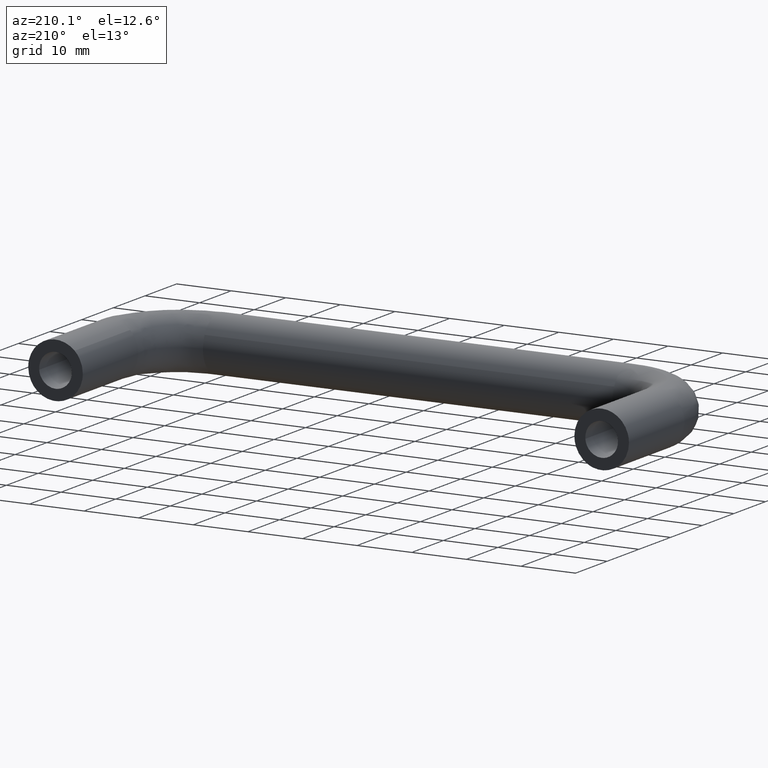
[diagram: clean part render]
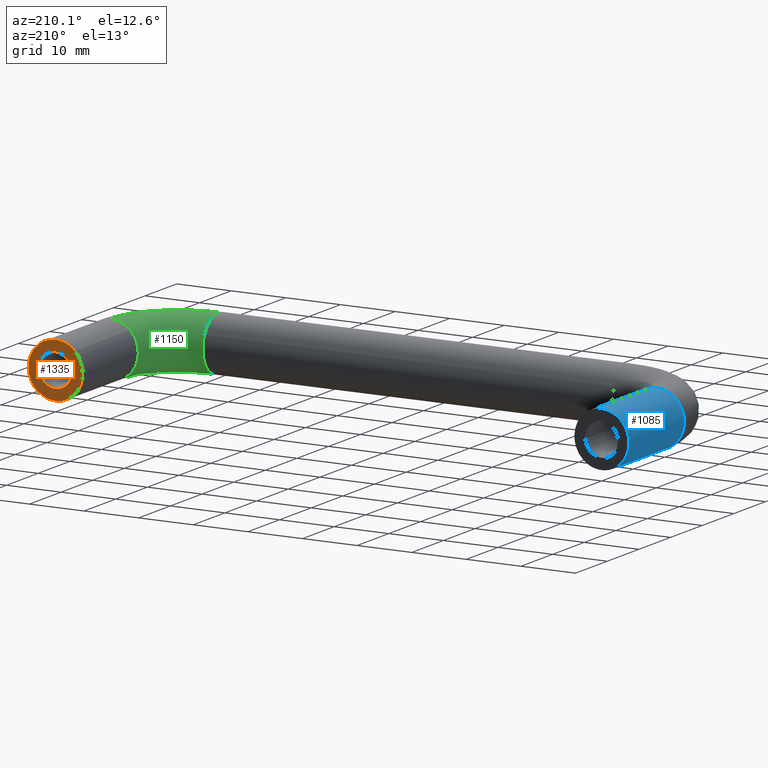
[diagram: same view with three faces highlighted in distinct colors, each labeled with its STEP entity id]
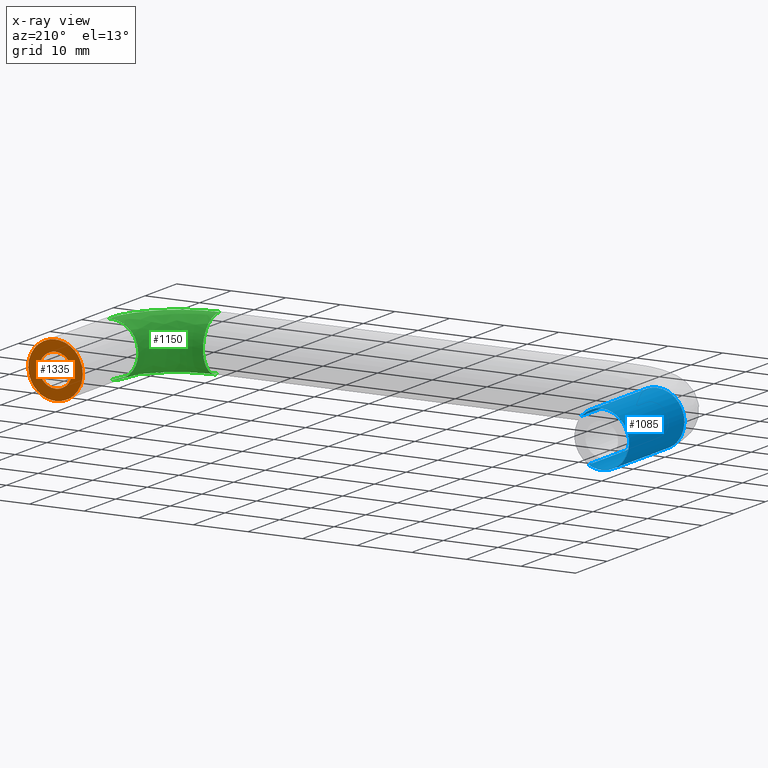
[diagram: x-ray of the same camera — body ghosted, the three highlighted faces saturated]
A machine part, auxiliary view with three faces highlighted in distinct colors.
The next image is the same camera in x-ray (body ghosted, the three faces saturated) — at least one of them is partly hidden behind the body in this view.
Their STEP definitions:

[orange] entity #1335 — the highlighted face is a freeform B-spline surface patch.
#261=CARTESIAN_POINT('',(97.009247998828442,-8.326673E-017,0.235377287537022));
#262=VERTEX_POINT('',#261);
#268=CARTESIAN_POINT('',(100.0,0.0,3.0));
#269=VERTEX_POINT('',#268);
#270=CARTESIAN_POINT('',(100.0,0.0,3.0));
#271=CARTESIAN_POINT('',(97.226828525682933,0.0,3.000000000000000));
#272=CARTESIAN_POINT('',(97.009247998828442,-8.326673E-017,0.235377287537022));
#280=(BOUNDED_CURVE()B_SPLINE_CURVE(2,(#270,#271,#272),.UNSPECIFIED.,.F.,.U.)B_SPLINE_CURVE_WITH_KNOTS((3,3),(0.0,0.236331300592245),.UNSPECIFIED.)CURVE()GEOMETRIC_REPRESENTATION_ITEM()RATIONAL_B_SPLINE_CURVE((1.0,0.723120658652672,0.969723356087248))REPRESENTATION_ITEM(''));
#281=EDGE_CURVE('',#269,#262,#280,.T.);
#283=CARTESIAN_POINT('',(102.990752001171600,-8.326673E-017,-0.235377287537022));
#284=VERTEX_POINT('',#283);
#285=CARTESIAN_POINT('',(102.990752001171560,-8.326673E-017,-0.235377287537022));
#286=CARTESIAN_POINT('',(102.999999999999990,0.0,-0.117870321378136));
#287=CARTESIAN_POINT('',(103.0,0.0,0.0));
#288=CARTESIAN_POINT('',(103.0,0.0,3.0));
#289=CARTESIAN_POINT('',(100.0,0.0,3.0));
#297=(BOUNDED_CURVE()B_SPLINE_CURVE(2,(#285,#286,#287,#288,#289),.UNSPECIFIED.,.F.,.U.)B_SPLINE_CURVE_WITH_KNOTS((3,2,3),(0.736331300592245,0.750000000000000,1.0),.UNSPECIFIED.)CURVE()GEOMETRIC_REPRESENTATION_ITEM()RATIONAL_B_SPLINE_CURVE((0.969723356087248,0.983986122533876,1.0,0.707106781186548,1.0))REPRESENTATION_ITEM(''));
#298=EDGE_CURVE('',#284,#269,#297,.T.);
#374=CARTESIAN_POINT('',(100.0,0.0,-3.0));
#375=VERTEX_POINT('',#374);
#376=CARTESIAN_POINT('',(100.0,0.0,-3.0));
#377=CARTESIAN_POINT('',(102.773171474317050,0.0,-3.0));
#378=CARTESIAN_POINT('',(102.990752001171560,-8.326673E-017,-0.235377287537022));
#386=(BOUNDED_CURVE()B_SPLINE_CURVE(2,(#376,#377,#378),.UNSPECIFIED.,.F.,.U.)B_SPLINE_CURVE_WITH_KNOTS((3,3),(0.500000000000000,0.736331300592245),.UNSPECIFIED.)CURVE()GEOMETRIC_REPRESENTATION_ITEM()RATIONAL_B_SPLINE_CURVE((1.0,0.723120658652671,0.969723356087250))REPRESENTATION_ITEM(''));
#387=EDGE_CURVE('',#375,#284,#386,.T.);
#389=CARTESIAN_POINT('',(97.009247998828442,-8.326673E-017,0.235377287537022));
#390=CARTESIAN_POINT('',(97.0,0.0,0.117870321378135));
#391=CARTESIAN_POINT('',(97.0,0.0,0.0));
#392=CARTESIAN_POINT('',(97.0,0.0,-3.0));
#393=CARTESIAN_POINT('',(100.0,0.0,-3.0));
#401=(BOUNDED_CURVE()B_SPLINE_CURVE(2,(#389,#390,#391,#392,#393),.UNSPECIFIED.,.F.,.U.)B_SPLINE_CURVE_WITH_KNOTS((3,2,3),(0.236331300592245,0.250000000000000,0.500000000000000),.UNSPECIFIED.)CURVE()GEOMETRIC_REPRESENTATION_ITEM()RATIONAL_B_SPLINE_CURVE((0.969723356087248,0.983986122533876,1.0,0.707106781186548,1.0))REPRESENTATION_ITEM(''));
#402=EDGE_CURVE('',#262,#375,#401,.T.);
#475=CARTESIAN_POINT('',(96.495454007183923,1.351697E-014,3.566252568766891));
#476=VERTEX_POINT('',#475);
#482=CARTESIAN_POINT('',(95.0,1.387779E-014,0.0));
#483=VERTEX_POINT('',#482);
#484=CARTESIAN_POINT('',(95.0,1.387779E-014,0.0));
#485=CARTESIAN_POINT('',(95.000000000000014,1.387779E-014,2.096674550648371));
#486=CARTESIAN_POINT('',(96.495454007183923,1.351697E-014,3.566252568766892));
#494=(BOUNDED_CURVE()B_SPLINE_CURVE(2,(#484,#485,#486),.UNSPECIFIED.,.F.,.U.)B_SPLINE_CURVE_WITH_KNOTS((3,3),(0.500000000000000,0.626316785404827),.UNSPECIFIED.)CURVE()GEOMETRIC_REPRESENTATION_ITEM()RATIONAL_B_SPLINE_CURVE((1.0,0.852010680530448,0.853569641938031))REPRESENTATION_ITEM(''));
#495=EDGE_CURVE('',#483,#476,#494,.T.);
#497=CARTESIAN_POINT('',(103.294845323498610,1.327082E-014,-3.760850208956461));
#498=VERTEX_POINT('',#497);
#499=CARTESIAN_POINT('',(103.294845323498630,1.327082E-014,-3.760850208956461));
#500=CARTESIAN_POINT('',(101.880436969536730,1.387779E-014,-5.000000000000001));
#501=CARTESIAN_POINT('',(100.0,1.387779E-014,-5.0));
#502=CARTESIAN_POINT('',(95.000000000000014,1.387779E-014,-5.000000000000001));
#503=CARTESIAN_POINT('',(95.0,1.387779E-014,0.0));
#511=(BOUNDED_CURVE()B_SPLINE_CURVE(2,(#499,#500,#501,#502,#503),.UNSPECIFIED.,.F.,.U.)B_SPLINE_CURVE_WITH_KNOTS((3,2,3),(0.134954821985611,0.250000000000000,0.500000000000000),.UNSPECIFIED.)CURVE()GEOMETRIC_REPRESENTATION_ITEM()RATIONAL_B_SPLINE_CURVE((0.854482199329621,0.865216190009596,1.0,0.707106781186548,1.0))REPRESENTATION_ITEM(''));
#512=EDGE_CURVE('',#498,#483,#511,.T.);
#560=CARTESIAN_POINT('',(105.0,1.387779E-014,0.0));
#561=VERTEX_POINT('',#560);
#562=CARTESIAN_POINT('',(105.0,1.387779E-014,0.0));
#563=CARTESIAN_POINT('',(105.000000000000010,1.387779E-014,-2.266980312642356));
#564=CARTESIAN_POINT('',(103.294845323498630,1.327082E-014,-3.760850208956461));
#572=(BOUNDED_CURVE()B_SPLINE_CURVE(2,(#562,#563,#564),.UNSPECIFIED.,.F.,.U.)B_SPLINE_CURVE_WITH_KNOTS((3,3),(0.0,0.134954821985611),.UNSPECIFIED.)CURVE()GEOMETRIC_REPRESENTATION_ITEM()RATIONAL_B_SPLINE_CURVE((1.0,0.841890591176951,0.854482199329621))REPRESENTATION_ITEM(''));
#573=EDGE_CURVE('',#561,#498,#572,.T.);
#575=CARTESIAN_POINT('',(96.495454007183923,1.351697E-014,3.566252568766892));
#576=CARTESIAN_POINT('',(97.954446530814650,1.387779E-014,5.0));
#577=CARTESIAN_POINT('',(100.0,1.387779E-014,5.0));
#578=CARTESIAN_POINT('',(105.000000000000010,1.387779E-014,5.000000000000001));
#579=CARTESIAN_POINT('',(105.0,1.387779E-014,0.0));
#587=(BOUNDED_CURVE()B_SPLINE_CURVE(2,(#575,#576,#577,#578,#579),.UNSPECIFIED.,.F.,.U.)B_SPLINE_CURVE_WITH_KNOTS((3,2,3),(0.626316785404827,0.750000000000000,1.0),.UNSPECIFIED.)CURVE()GEOMETRIC_REPRESENTATION_ITEM()RATIONAL_B_SPLINE_CURVE((0.853569641938031,0.855096100656099,1.0,0.707106781186548,1.0))REPRESENTATION_ITEM(''));
#588=EDGE_CURVE('',#476,#561,#587,.T.);
#1318=CARTESIAN_POINT('',(94.500500019381946,1.387779E-014,-5.496745665956859));
#1319=CARTESIAN_POINT('',(105.499500248839000,1.387779E-014,-5.496745665956859));
#1320=CARTESIAN_POINT('',(94.500500019381946,1.387779E-014,5.499280800510766));
#1321=CARTESIAN_POINT('',(105.499500248839000,1.387779E-014,5.499280800510766));
#1322=B_SPLINE_SURFACE_WITH_KNOTS('',1,1,((#1318,#1320),(#1319,#1321)),.UNSPECIFIED.,.F.,.F.,.U.,(2,2),(2,2),(0.0,10.999000229457041),(0.0,10.996026466467629),.UNSPECIFIED.);
#1323=ORIENTED_EDGE('',*,*,#573,.T.);
#1324=ORIENTED_EDGE('',*,*,#512,.T.);
#1325=ORIENTED_EDGE('',*,*,#495,.T.);
#1326=ORIENTED_EDGE('',*,*,#588,.T.);
#1327=EDGE_LOOP('',(#1323,#1324,#1325,#1326));
#1328=FACE_OUTER_BOUND('',#1327,.T.);
#1329=ORIENTED_EDGE('',*,*,#387,.T.);
#1330=ORIENTED_EDGE('',*,*,#298,.T.);
#1331=ORIENTED_EDGE('',*,*,#281,.T.);
#1332=ORIENTED_EDGE('',*,*,#402,.T.);
#1333=EDGE_LOOP('',(#1329,#1330,#1331,#1332));
#1334=FACE_BOUND('',#1333,.T.);
#1335=ADVANCED_FACE('',(#1328,#1334),#1322,.F.);

[blue] entity #1085 — the highlighted face is a freeform B-spline surface patch.
#888=CARTESIAN_POINT('',(2.421098661291466,-17.499999999999751,-4.374732137204823));
#889=VERTEX_POINT('',#888);
#905=CARTESIAN_POINT('',(2.421098661285238,6.025501E-017,-4.374732137208268));
#906=VERTEX_POINT('',#905);
#907=CARTESIAN_POINT('',(2.421098661285238,6.025501E-017,-4.374732137208268));
#908=CARTESIAN_POINT('',(2.421098661291466,-17.499999999999751,-4.374732137204823));
#909=QUASI_UNIFORM_CURVE('',1,(#907,#908),.UNSPECIFIED.,.F.,.U.);
#910=EDGE_CURVE('',#906,#889,#909,.T.);
#927=CARTESIAN_POINT('',(3.686388270127679,1.110223E-016,3.377949307177291));
#928=VERTEX_POINT('',#927);
#942=CARTESIAN_POINT('',(3.686388231908143,-17.500000000098041,3.377949348816192));
#943=VERTEX_POINT('',#942);
#944=CARTESIAN_POINT('',(3.686388270127679,1.110223E-016,3.377949307177291));
#945=CARTESIAN_POINT('',(3.686388231908143,-17.500000000098041,3.377949348816192));
#946=QUASI_UNIFORM_CURVE('',1,(#944,#945),.UNSPECIFIED.,.F.,.U.);
#947=EDGE_CURVE('',#928,#943,#946,.T.);
#965=CARTESIAN_POINT('',(3.686386684050619,0.437500000009226,3.377951038078300));
#966=CARTESIAN_POINT('',(0.308435645972318,0.437500000009226,7.064337722128919));
#967=CARTESIAN_POINT('',(-3.377951038078300,0.437500000009225,3.686386684050619));
#968=CARTESIAN_POINT('',(-7.064337722128919,0.437500000009225,0.308435645972318));
#969=CARTESIAN_POINT('',(-3.686386684050619,0.437500000009225,-3.377951038078300));
#970=CARTESIAN_POINT('',(-1.025271042433037,0.437500000009226,-6.282049160103976));
#971=CARTESIAN_POINT('',(2.421098661271897,0.437500000009226,-4.374732137215650));
#972=CARTESIAN_POINT('',(3.686386684050621,-17.948437500378439,3.377951038078300));
#973=CARTESIAN_POINT('',(0.308435645972320,-17.948437500378436,7.064337722128919));
#974=CARTESIAN_POINT('',(-3.377951038078298,-17.948437500378439,3.686386684050619));
#975=CARTESIAN_POINT('',(-7.064337722128917,-17.948437500378436,0.308435645972318));
#976=CARTESIAN_POINT('',(-3.686386684050616,-17.948437500378439,-3.377951038078300));
#977=CARTESIAN_POINT('',(-1.025271042433034,-17.948437500378436,-6.282049160103976));
#978=CARTESIAN_POINT('',(2.421098661271898,-17.948437500378439,-4.374732137215650));
#986=(BOUNDED_SURFACE()B_SPLINE_SURFACE(2,1,((#965,#972),(#966,#973),(#967,#974),(#968,#975),(#969,#976),(#970,#977),(#971,#978)),.UNSPECIFIED.,.F.,.F.,.U.)B_SPLINE_SURFACE_WITH_KNOTS((3,2,2,3),(2,2),(0.0,8.284271247461899,16.568542494923800,23.527330342791789),(0.0,18.385937500387669),.UNSPECIFIED.)GEOMETRIC_REPRESENTATION_ITEM()RATIONAL_B_SPLINE_SURFACE(((1.0,1.0),(0.707106781186548,0.707106781186548),(1.0,1.0),(0.707106781186548,0.707106781186548),(1.0,1.0),(0.753969696196700,0.753969696196700),(0.921270302782944,0.921270302782944)))REPRESENTATION_ITEM('')SURFACE());
#987=CARTESIAN_POINT('',(-0.348666258404388,-17.500000000158121,-4.987828369165310));
#988=VERTEX_POINT('',#987);
#989=CARTESIAN_POINT('',(-0.348666258404388,-17.500000000158121,-4.987828369165310));
#990=CARTESIAN_POINT('',(-0.174545579902668,-17.499999999999744,-5.000000000000001));
#991=CARTESIAN_POINT('',(2.143061E-015,-17.499999999999751,-5.0));
#992=CARTESIAN_POINT('',(1.291289514132040,-17.499999999999748,-4.999999999999999));
#993=CARTESIAN_POINT('',(2.421098661291466,-17.499999999999755,-4.374732137204823));
#1001=(BOUNDED_CURVE()B_SPLINE_CURVE(2,(#989,#990,#991,#992,#993),.UNSPECIFIED.,.F.,.U.)B_SPLINE_CURVE_WITH_KNOTS((3,2,3),(0.237833686498780,0.250000000000000,0.332484288972018),.UNSPECIFIED.)CURVE()GEOMETRIC_REPRESENTATION_ITEM()RATIONAL_B_SPLINE_CURVE((0.972879876310173,0.985746277110136,1.0,0.903363644405787,0.870495137451860))REPRESENTATION_ITEM(''));
#1002=EDGE_CURVE('',#988,#889,#1001,.T.);
#1003=ORIENTED_EDGE('',*,*,#1002,.F.);
#1004=CARTESIAN_POINT('',(-4.999999999999998,-17.499999999999751,0.0));
#1005=VERTEX_POINT('',#1004);
#1006=CARTESIAN_POINT('',(-4.999999999999998,-17.499999999999751,0.0));
#1007=CARTESIAN_POINT('',(-4.999999999999998,-17.499999999999748,-4.662684235345060));
#1008=CARTESIAN_POINT('',(-0.348666258404388,-17.500000000158124,-4.987828369165310));
#1016=(BOUNDED_CURVE()B_SPLINE_CURVE(2,(#1006,#1007,#1008),.UNSPECIFIED.,.F.,.U.)B_SPLINE_CURVE_WITH_KNOTS((3,3),(0.0,0.237833686498780),.UNSPECIFIED.)CURVE()GEOMETRIC_REPRESENTATION_ITEM()RATIONAL_B_SPLINE_CURVE((1.0,0.721360504076412,0.972879876310173))REPRESENTATION_ITEM(''));
#1017=EDGE_CURVE('',#1005,#988,#1016,.T.);
#1018=ORIENTED_EDGE('',*,*,#1017,.F.);
#1019=CARTESIAN_POINT('',(0.062830199907917,-17.500000000368988,4.999605221012907));
#1020=VERTEX_POINT('',#1019);
#1021=CARTESIAN_POINT('',(0.062830199907917,-17.500000000368981,4.999605221012906));
#1022=CARTESIAN_POINT('',(0.031416340450660,-17.499999999999744,5.0));
#1023=CARTESIAN_POINT('',(2.143061E-015,-17.499999999999751,5.0));
#1024=CARTESIAN_POINT('',(-4.999999999999997,-17.499999999999755,5.000000000000001));
#1025=CARTESIAN_POINT('',(-4.999999999999998,-17.499999999999751,0.0));
#1033=(BOUNDED_CURVE()B_SPLINE_CURVE(2,(#1021,#1022,#1023,#1024,#1025),.UNSPECIFIED.,.F.,.U.)B_SPLINE_CURVE_WITH_KNOTS((3,2,3),(0.747784295887175,0.750000000000000,1.0),.UNSPECIFIED.)CURVE()GEOMETRIC_REPRESENTATION_ITEM()RATIONAL_B_SPLINE_CURVE((0.994854295564483,0.997404141161825,1.0,0.707106781186548,1.0))REPRESENTATION_ITEM(''));
#1034=EDGE_CURVE('',#1020,#1005,#1033,.T.);
#1035=ORIENTED_EDGE('',*,*,#1034,.F.);
#1036=CARTESIAN_POINT('',(3.686388231908142,-17.500000000098037,3.377949348816192));
#1037=CARTESIAN_POINT('',(2.225318012349691,-17.500000000207262,4.972429166782591));
#1038=CARTESIAN_POINT('',(0.062830199907917,-17.500000000368981,4.999605221012906));
#1046=(BOUNDED_CURVE()B_SPLINE_CURVE(2,(#1036,#1037,#1038),.UNSPECIFIED.,.F.,.U.)B_SPLINE_CURVE_WITH_KNOTS((3,3),(0.618415139906217,0.747784295887175),.UNSPECIFIED.)CURVE()GEOMETRIC_REPRESENTATION_ITEM()RATIONAL_B_SPLINE_CURVE((0.853959789376830,0.845975494058237,0.994854295564483))REPRESENTATION_ITEM(''));
#1047=EDGE_CURVE('',#943,#1020,#1046,.T.);
#1048=ORIENTED_EDGE('',*,*,#1047,.F.);
#1049=ORIENTED_EDGE('',*,*,#947,.F.);
#1050=CARTESIAN_POINT('',(-5.0,0.0,0.0));
#1051=VERTEX_POINT('',#1050);
#1052=CARTESIAN_POINT('',(3.686388270127680,1.110223E-016,3.377949307177292));
#1053=CARTESIAN_POINT('',(2.200054055572904,0.0,5.000000000000001));
#1054=CARTESIAN_POINT('',(0.0,0.0,5.0));
#1055=CARTESIAN_POINT('',(-5.000000000000001,0.0,5.000000000000001));
#1056=CARTESIAN_POINT('',(-5.0,0.0,0.0));
#1064=(BOUNDED_CURVE()B_SPLINE_CURVE(2,(#1052,#1053,#1054,#1055,#1056),.UNSPECIFIED.,.F.,.U.)B_SPLINE_CURVE_WITH_KNOTS((3,2,3),(0.618415138202460,0.750000000000000,1.0),.UNSPECIFIED.)CURVE()GEOMETRIC_REPRESENTATION_ITEM()RATIONAL_B_SPLINE_CURVE((0.853959789587132,0.845838745123980,1.0,0.707106781186548,1.0))REPRESENTATION_ITEM(''));
#1065=EDGE_CURVE('',#928,#1051,#1064,.T.);
#1066=ORIENTED_EDGE('',*,*,#1065,.T.);
#1067=CARTESIAN_POINT('',(-5.0,0.0,0.0));
#1068=CARTESIAN_POINT('',(-5.000000000000001,0.0,-5.000000000000001));
#1069=CARTESIAN_POINT('',(0.0,0.0,-5.0));
#1070=CARTESIAN_POINT('',(1.291289514124439,0.0,-5.000000000000001));
#1071=CARTESIAN_POINT('',(2.421098661285238,6.025501E-017,-4.374732137208268));
#1079=(BOUNDED_CURVE()B_SPLINE_CURVE(2,(#1067,#1068,#1069,#1070,#1071),.UNSPECIFIED.,.F.,.U.)B_SPLINE_CURVE_WITH_KNOTS((3,2,3),(0.0,0.250000000000000,0.332484288971580),.UNSPECIFIED.)CURVE()GEOMETRIC_REPRESENTATION_ITEM()RATIONAL_B_SPLINE_CURVE((1.0,0.707106781186548,1.0,0.903363644406300,0.870495137452209))REPRESENTATION_ITEM(''));
#1080=EDGE_CURVE('',#1051,#906,#1079,.T.);
#1081=ORIENTED_EDGE('',*,*,#1080,.T.);
#1082=ORIENTED_EDGE('',*,*,#910,.T.);
#1083=EDGE_LOOP('',(#1003,#1018,#1035,#1048,#1049,#1066,#1081,#1082));
#1084=FACE_OUTER_BOUND('',#1083,.T.);
#1085=ADVANCED_FACE('',(#1084),#986,.T.);

[green] entity #1150 — the highlighted face is a freeform B-spline surface patch.
#428=CARTESIAN_POINT('',(99.937169800017131,-17.500000000407269,-4.999605221011965));
#429=VERTEX_POINT('',#428);
#445=CARTESIAN_POINT('',(95.0,-17.499999999999751,0.0));
#446=VERTEX_POINT('',#445);
#447=CARTESIAN_POINT('',(99.937169800017131,-17.500000000407269,-4.999605221011965));
#448=CARTESIAN_POINT('',(95.000000000000014,-17.499999999999748,-4.937559648418342));
#449=CARTESIAN_POINT('',(95.0,-17.499999999999751,0.0));
#457=(BOUNDED_CURVE()B_SPLINE_CURVE(2,(#447,#448,#449),.UNSPECIFIED.,.F.,.U.)B_SPLINE_CURVE_WITH_KNOTS((3,3),(0.252215704118098,0.500000000000000),.UNSPECIFIED.)CURVE()GEOMETRIC_REPRESENTATION_ITEM()RATIONAL_B_SPLINE_CURVE((0.994854295552348,0.709702640030899,1.0))REPRESENTATION_ITEM(''));
#458=EDGE_CURVE('',#429,#446,#457,.T.);
#460=CARTESIAN_POINT('',(96.495454011192379,-17.499999999999758,3.566252572706000));
#461=VERTEX_POINT('',#460);
#462=CARTESIAN_POINT('',(95.0,-17.499999999999751,0.0));
#463=CARTESIAN_POINT('',(95.0,-17.499999999999755,2.096674557256572));
#464=CARTESIAN_POINT('',(96.495454011192379,-17.499999999999758,3.566252572706000));
#472=(BOUNDED_CURVE()B_SPLINE_CURVE(2,(#462,#463,#464),.UNSPECIFIED.,.F.,.U.)B_SPLINE_CURVE_WITH_KNOTS((3,3),(0.500000000000000,0.626316785744029),.UNSPECIFIED.)CURVE()GEOMETRIC_REPRESENTATION_ITEM()RATIONAL_B_SPLINE_CURVE((1.0,0.852010680133048,0.853569641946403))REPRESENTATION_ITEM(''));
#473=EDGE_CURVE('',#446,#461,#472,.T.);
#591=CARTESIAN_POINT('',(100.348666260113110,-17.500000000694289,4.987828369045865));
#592=VERTEX_POINT('',#591);
#593=CARTESIAN_POINT('',(96.495454011192379,-17.499999999999758,3.566252572706000));
#594=CARTESIAN_POINT('',(97.954446537375290,-17.499999999999751,5.000000000000001));
#595=CARTESIAN_POINT('',(100.0,-17.499999999999751,5.0));
#596=CARTESIAN_POINT('',(100.174545581617640,-17.499999999999751,5.0));
#597=CARTESIAN_POINT('',(100.348666260113110,-17.500000000694286,4.987828369045865));
#605=(BOUNDED_CURVE()B_SPLINE_CURVE(2,(#593,#594,#595,#596,#597),.UNSPECIFIED.,.F.,.U.)B_SPLINE_CURVE_WITH_KNOTS((3,2,3),(0.626316785744030,0.750000000000000,0.762166313619054),.UNSPECIFIED.)CURVE()GEOMETRIC_REPRESENTATION_ITEM()RATIONAL_B_SPLINE_CURVE((0.853569641946403,0.855096101053501,1.0,0.985746276972085,0.972879876060944))REPRESENTATION_ITEM(''));
#606=EDGE_CURVE('',#461,#592,#605,.T.);
#650=CARTESIAN_POINT('',(87.500000000000000,-25.521972536825938,2.224245948419135));
#651=VERTEX_POINT('',#650);
#652=CARTESIAN_POINT('',(87.500000000261423,-30.348666258785439,4.987828369138665));
#653=VERTEX_POINT('',#652);
#654=CARTESIAN_POINT('',(87.500000000000000,-25.521972536825942,2.224245948419136));
#655=CARTESIAN_POINT('',(87.500000000000000,-26.900695591529157,4.999999999999999));
#656=CARTESIAN_POINT('',(87.500000000000000,-30.0,5.0));
#657=CARTESIAN_POINT('',(87.500000000000000,-30.174545580285226,5.0));
#658=CARTESIAN_POINT('',(87.500000000261423,-30.348666258785432,4.987828369138665));
#666=(BOUNDED_CURVE()B_SPLINE_CURVE(2,(#654,#655,#656,#657,#658),.UNSPECIFIED.,.F.,.U.)B_SPLINE_CURVE_WITH_KNOTS((3,2,3),(0.575619190623108,0.750000000000000,0.762166313527505),.UNSPECIFIED.)CURVE()GEOMETRIC_REPRESENTATION_ITEM()RATIONAL_B_SPLINE_CURVE((0.876408099967899,0.795700173769228,1.0,0.985746277079341,0.972879876254578))REPRESENTATION_ITEM(''));
#667=EDGE_CURVE('',#651,#653,#666,.T.);
#740=CARTESIAN_POINT('',(87.500000000089756,-26.558227491804399,-3.626872206390019));
#741=VERTEX_POINT('',#740);
#747=CARTESIAN_POINT('',(87.500000000284388,-29.937169800261760,-4.999605221015042));
#748=VERTEX_POINT('',#747);
#749=CARTESIAN_POINT('',(87.500000000284388,-29.937169800261767,-4.999605221015042));
#750=CARTESIAN_POINT('',(87.500000000171596,-27.978853070194326,-4.974994991508750));
#751=CARTESIAN_POINT('',(87.500000000089756,-26.558227491804399,-3.626872206390019));
#759=(BOUNDED_CURVE()B_SPLINE_CURVE(2,(#749,#750,#751),.UNSPECIFIED.,.F.,.U.)B_SPLINE_CURVE_WITH_KNOTS((3,3),(0.252215704100880,0.371049495849149),.UNSPECIFIED.)CURVE()GEOMETRIC_REPRESENTATION_ITEM()RATIONAL_B_SPLINE_CURVE((0.994854295591978,0.858099654491509,0.853699663650991))REPRESENTATION_ITEM(''));
#760=EDGE_CURVE('',#748,#741,#759,.T.);
#809=CARTESIAN_POINT('',(87.500000000000000,-25.0,0.0));
#810=VERTEX_POINT('',#809);
#811=CARTESIAN_POINT('',(87.500000000000000,-25.0,0.0));
#812=CARTESIAN_POINT('',(87.500000000000000,-25.0,1.173369647362118));
#813=CARTESIAN_POINT('',(87.500000000000000,-25.521972536825942,2.224245948419135));
#821=(BOUNDED_CURVE()B_SPLINE_CURVE(2,(#811,#812,#813),.UNSPECIFIED.,.F.,.U.)B_SPLINE_CURVE_WITH_KNOTS((3,3),(0.500000000000000,0.575619190623109),.UNSPECIFIED.)CURVE()GEOMETRIC_REPRESENTATION_ITEM()RATIONAL_B_SPLINE_CURVE((1.0,0.911406607417319,0.876408099967899))REPRESENTATION_ITEM(''));
#822=EDGE_CURVE('',#810,#651,#821,.T.);
#824=CARTESIAN_POINT('',(87.500000000089756,-26.558227491804399,-3.626872206390019));
#825=CARTESIAN_POINT('',(87.499999999999986,-24.999999999999993,-2.148170134432441));
#826=CARTESIAN_POINT('',(87.500000000000000,-25.0,0.0));
#834=(BOUNDED_CURVE()B_SPLINE_CURVE(2,(#824,#825,#826),.UNSPECIFIED.,.F.,.U.)B_SPLINE_CURVE_WITH_KNOTS((3,3),(0.371049495849150,0.500000000000000),.UNSPECIFIED.)CURVE()GEOMETRIC_REPRESENTATION_ITEM()RATIONAL_B_SPLINE_CURVE((0.853699663650991,0.848925087086560,1.0))REPRESENTATION_ITEM(''));
#835=EDGE_CURVE('',#741,#810,#834,.T.);
#1086=CARTESIAN_POINT('',(86.606541061896067,-30.317564068823206,4.987828388444838));
#1087=CARTESIAN_POINT('',(101.344915040638500,-31.344914655387068,4.987828388444835));
#1088=CARTESIAN_POINT('',(100.317564043961940,-16.606540705231907,4.987828388444838));
#1089=CARTESIAN_POINT('',(86.616467438591684,-30.175160244941583,4.997807049440652));
#1090=CARTESIAN_POINT('',(101.191097292389540,-31.191096911418274,4.997807049440650));
#1091=CARTESIAN_POINT('',(100.175160220356500,-16.616467085890051,4.997807049440652));
#1092=CARTESIAN_POINT('',(86.626417252596539,-30.032420189365286,4.999605221019078));
#1093=CARTESIAN_POINT('',(101.036916362866730,-31.036915986185715,4.999605221019080));
#1094=CARTESIAN_POINT('',(100.032420165057050,-16.626416903866826,4.999605221019078));
#1095=CARTESIAN_POINT('',(86.974075287894451,-25.044917181192343,5.062435420435842));
#1096=CARTESIAN_POINT('',(95.649655956574733,-25.649655729800639,5.062435420435842));
#1097=CARTESIAN_POINT('',(95.044917166558136,-16.974075077947923,5.062435420435843));
#1098=CARTESIAN_POINT('',(86.978444317592007,-24.982239070673195,0.062830199416764));
#1099=CARTESIAN_POINT('',(95.581954081991839,-25.581953857101645,0.062830199416764));
#1100=CARTESIAN_POINT('',(94.982239056160523,-16.978444109389564,0.062830199416764));
#1101=CARTESIAN_POINT('',(86.982813347289536,-24.919560960154026,-4.936775021602313));
#1102=CARTESIAN_POINT('',(95.514252207408958,-25.514251984402659,-4.936775021602313));
#1103=CARTESIAN_POINT('',(94.919560945762967,-16.982813140831190,-4.936775021602315));
#1104=CARTESIAN_POINT('',(86.635155311991610,-29.907063968326955,-4.999605221019078));
#1105=CARTESIAN_POINT('',(100.901512613700970,-30.901512240787724,-4.999605221019080));
#1106=CARTESIAN_POINT('',(99.907063944261864,-16.635154966750083,-4.999605221019078));
#1114=(BOUNDED_SURFACE()B_SPLINE_SURFACE(2,2,((#1086,#1089,#1092,#1095,#1098,#1101,#1104),(#1087,#1090,#1093,#1096,#1099,#1102,#1105),(#1088,#1091,#1094,#1097,#1100,#1103,#1106)),.UNSPECIFIED.,.F.,.F.,.U.)B_SPLINE_SURFACE_WITH_KNOTS((3,3),(3,2,2,3),(0.0,23.415073753643291),(0.0,0.331370533878607,8.615641781340509,16.899913028802409),.UNSPECIFIED.)GEOMETRIC_REPRESENTATION_ITEM()RATIONAL_B_SPLINE_SURFACE(((0.895729732449210,0.905606490046838,0.916342095240933,0.647951709431553,0.916342095240933,0.647951709431553,0.916342095240933),(0.587800221482116,0.594281596491894,0.601326568744382,0.425202094466791,0.601326568744382,0.425202094466791,0.601326568744382),(0.895729743804760,0.905606501527600,0.916342106857795,0.647951717645915,0.916342106857795,0.647951717645915,0.916342106857795)))REPRESENTATION_ITEM('')SURFACE());
#1115=ORIENTED_EDGE('',*,*,#606,.F.);
#1116=ORIENTED_EDGE('',*,*,#473,.F.);
#1117=ORIENTED_EDGE('',*,*,#458,.F.);
#1118=CARTESIAN_POINT('',(87.500000000284388,-29.937169800261767,-4.999605221015042));
#1119=CARTESIAN_POINT('',(99.937169799768185,-29.937169800014203,-4.999605221019078));
#1120=CARTESIAN_POINT('',(99.937169800017145,-17.500000000407269,-4.999605221011965));
#1128=(BOUNDED_CURVE()B_SPLINE_CURVE(2,(#1118,#1119,#1120),.UNSPECIFIED.,.F.,.U.)B_SPLINE_CURVE_WITH_KNOTS((3,3),(-1.734750791610881,-0.265249208409693),.UNSPECIFIED.)CURVE()GEOMETRIC_REPRESENTATION_ITEM()RATIONAL_B_SPLINE_CURVE((0.889029723559601,0.628638946237790,0.889029723552309))REPRESENTATION_ITEM(''));
#1129=EDGE_CURVE('',#748,#429,#1128,.T.);
#1130=ORIENTED_EDGE('',*,*,#1129,.F.);
#1131=ORIENTED_EDGE('',*,*,#760,.T.);
#1132=ORIENTED_EDGE('',*,*,#835,.T.);
#1133=ORIENTED_EDGE('',*,*,#822,.T.);
#1134=ORIENTED_EDGE('',*,*,#667,.T.);
#1135=CARTESIAN_POINT('',(87.500000000261409,-30.348666258785432,4.987828369138665));
#1136=CARTESIAN_POINT('',(100.348666256488140,-30.348666257354115,4.987828369202162));
#1137=CARTESIAN_POINT('',(100.348666260113110,-17.500000000694296,4.987828369045865));
#1145=(BOUNDED_CURVE()B_SPLINE_CURVE(2,(#1135,#1136,#1137),.UNSPECIFIED.,.F.,.U.)B_SPLINE_CURVE_WITH_KNOTS((3,3),(-1.734750791616118,-0.265249208453936),.UNSPECIFIED.)CURVE()GEOMETRIC_REPRESENTATION_ITEM()RATIONAL_B_SPLINE_CURVE((0.869031711860612,0.614498216559932,0.869031711836344))REPRESENTATION_ITEM(''));
#1146=EDGE_CURVE('',#653,#592,#1145,.T.);
#1147=ORIENTED_EDGE('',*,*,#1146,.T.);
#1148=EDGE_LOOP('',(#1115,#1116,#1117,#1130,#1131,#1132,#1133,#1134,#1147));
#1149=FACE_OUTER_BOUND('',#1148,.T.);
#1150=ADVANCED_FACE('',(#1149),#1114,.T.);